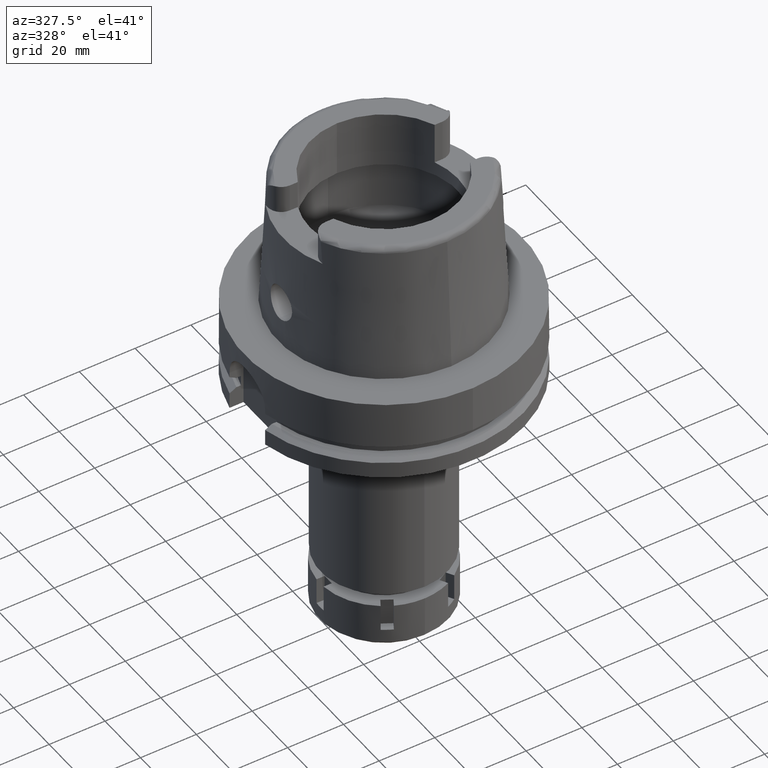
[diagram: clean part render]
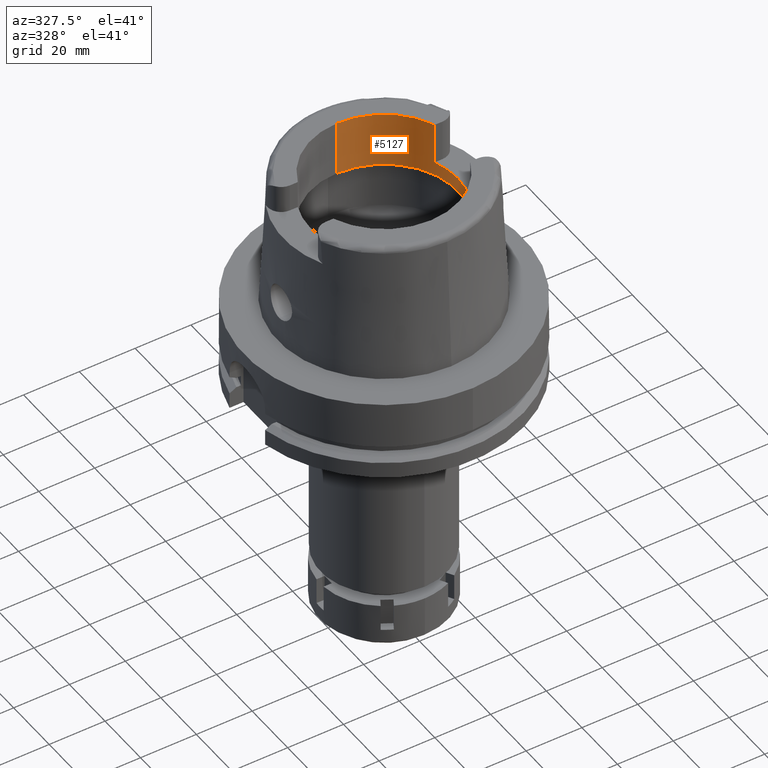
[diagram: same view with one face highlighted and labeled with its STEP entity id]
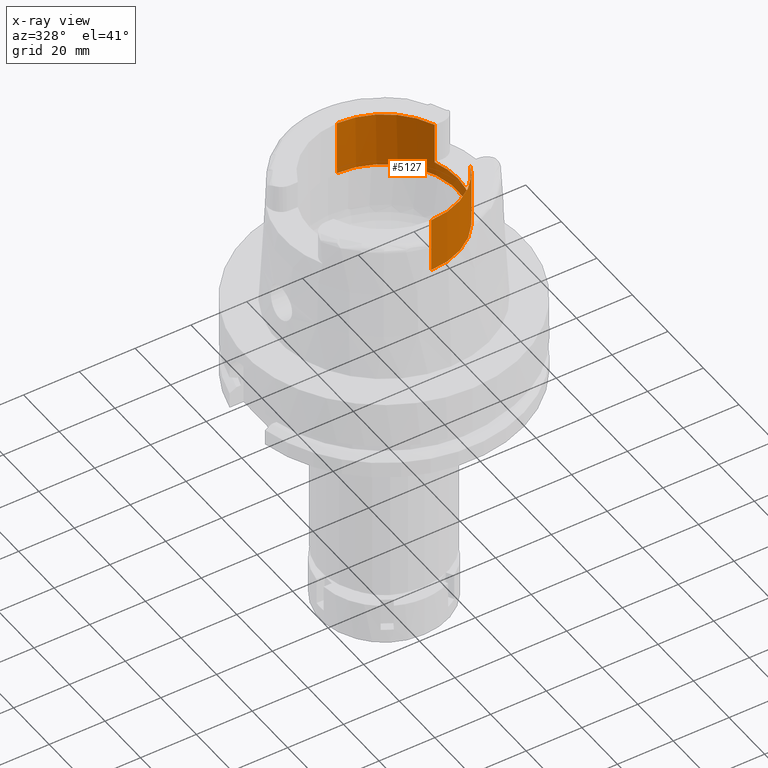
[diagram: x-ray of the same camera — body ghosted, the highlighted face saturated]
A machine part, auxiliary view. The second image highlights one B-rep face of the part: STEP entity #5127.
The next image is the same camera in x-ray: the body ghosted, the highlighted face saturated — about 0% of this face is hidden behind the body in this view.
In plain terms, the highlighted cylindrical surface (partial cylindrical patch) has radius 26.5 mm, axis along (0, 0, 1).
Its self-contained STEP definition (entity closure, byte-faithful):
#27 = EDGE_CURVE ( 'NONE', #1156, #3509, #1323, .T. ) ;
#113 = CARTESIAN_POINT ( 'NONE',  ( 0.0000000000000000000, -26.50000000000000000, 30.00337567297000163 ) ) ;
#222 = EDGE_CURVE ( 'NONE', #1194, #2707, #2703, .T. ) ;
#258 = CARTESIAN_POINT ( 'NONE',  ( 24.53670515777999839, 10.00999999999999979, 50.00000000000000000 ) ) ;
#261 = EDGE_CURVE ( 'NONE', #5029, #1194, #3629, .T. ) ;
#269 = VERTEX_POINT ( 'NONE', #1959 ) ;
#582 = FACE_OUTER_BOUND ( 'NONE', #5753, .T. ) ;
#724 = VERTEX_POINT ( 'NONE', #2742 ) ;
#886 = DIRECTION ( 'NONE',  ( 0.0000000000000000000, 0.0000000000000000000, 1.000000000000000000 ) ) ;
#914 = DIRECTION ( 'NONE',  ( 0.0000000000000000000, 0.0000000000000000000, 1.000000000000000000 ) ) ;
#1001 = AXIS2_PLACEMENT_3D ( 'NONE', #1419, #914, #3864 ) ;
#1008 = DIRECTION ( 'NONE',  ( 0.0000000000000000000, 0.0000000000000000000, 1.000000000000000000 ) ) ;
#1069 = CARTESIAN_POINT ( 'NONE',  ( 0.0000000000000000000, 0.0000000000000000000, 35.00000000000000000 ) ) ;
#1072 = ORIENTED_EDGE ( 'NONE', *, *, #5936, .T. ) ;
#1156 = VERTEX_POINT ( 'NONE', #1879 ) ;
#1194 = VERTEX_POINT ( 'NONE', #113 ) ;
#1231 = VERTEX_POINT ( 'NONE', #3378 ) ;
#1323 = LINE ( 'NONE', #258, #4213 ) ;
#1419 = CARTESIAN_POINT ( 'NONE',  ( 0.0000000000000000000, 0.0000000000000000000, 50.00000000000000000 ) ) ;
#1460 = ORIENTED_EDGE ( 'NONE', *, *, #27, .F. ) ;
#1493 = CIRCLE ( 'NONE', #4421, 26.50000000000000000 ) ;
#1527 = CYLINDRICAL_SURFACE ( 'NONE', #3517, 26.50000000000000000 ) ;
#1552 = EDGE_CURVE ( 'NONE', #2707, #1231, #1493, .T. ) ;
#1879 = CARTESIAN_POINT ( 'NONE',  ( 24.53670515777999839, 10.00999999999999979, 50.00000000000000000 ) ) ;
#1959 = CARTESIAN_POINT ( 'NONE',  ( 0.0000000000000000000, 26.50000000000000000, 50.00000000000000000 ) ) ;
#1971 = EDGE_CURVE ( 'NONE', #724, #1231, #4311, .T. ) ;
#2004 = EDGE_CURVE ( 'NONE', #1156, #269, #3176, .T. ) ;
#2239 = DIRECTION ( 'NONE',  ( 0.0000000000000000000, -1.000000000000000000, 0.0000000000000000000 ) ) ;
#2283 = LINE ( 'NONE', #3677, #4138 ) ;
#2398 = DIRECTION ( 'NONE',  ( 0.0000000000000000000, 4.406108640804999471E-14, 1.000000000000000000 ) ) ;
#2551 = AXIS2_PLACEMENT_3D ( 'NONE', #1069, #3491, #4833 ) ;
#2613 = CARTESIAN_POINT ( 'NONE',  ( 0.0000000000000000000, -26.50000000000000000, 30.00337567297000163 ) ) ;
#2703 = LINE ( 'NONE', #2613, #2848 ) ;
#2707 = VERTEX_POINT ( 'NONE', #3715 ) ;
#2742 = CARTESIAN_POINT ( 'NONE',  ( 24.53670515777999839, -10.00999999999999979, 35.00000000000000000 ) ) ;
#2797 = CARTESIAN_POINT ( 'NONE',  ( 24.53670515777999839, 10.00999999999999979, 35.00000000000000000 ) ) ;
#2848 = VECTOR ( 'NONE', #2398, 1000.000000000000000 ) ;
#2877 = ORIENTED_EDGE ( 'NONE', *, *, #3493, .F. ) ;
#3054 = AXIS2_PLACEMENT_3D ( 'NONE', #3305, #4275, #5156 ) ;
#3176 = CIRCLE ( 'NONE', #1001, 26.50000000000000711 ) ;
#3229 = CARTESIAN_POINT ( 'NONE',  ( 0.0000000000000000000, 0.0000000000000000000, 50.00000000000000000 ) ) ;
#3304 = ORIENTED_EDGE ( 'NONE', *, *, #1552, .T. ) ;
#3305 = CARTESIAN_POINT ( 'NONE',  ( 0.0000000000000000000, 0.0000000000000000000, 30.00337567297000163 ) ) ;
#3378 = CARTESIAN_POINT ( 'NONE',  ( 24.53670515777999839, -10.00999999999999979, 50.00000000000000000 ) ) ;
#3491 = DIRECTION ( 'NONE',  ( 0.0000000000000000000, 0.0000000000000000000, 1.000000000000000000 ) ) ;
#3493 = EDGE_CURVE ( 'NONE', #5029, #269, #2283, .T. ) ;
#3509 = VERTEX_POINT ( 'NONE', #2797 ) ;
#3517 = AXIS2_PLACEMENT_3D ( 'NONE', #3784, #5646, #5744 ) ;
#3629 = CIRCLE ( 'NONE', #3054, 26.50000000000000000 ) ;
#3677 = CARTESIAN_POINT ( 'NONE',  ( 0.0000000000000000000, 26.50000000000000000, 30.00337567297000163 ) ) ;
#3715 = CARTESIAN_POINT ( 'NONE',  ( 0.0000000000000000000, -26.50000000000000000, 50.00000000000000000 ) ) ;
#3767 = DIRECTION ( 'NONE',  ( 0.0000000000000000000, -4.406108640804999471E-14, 1.000000000000000000 ) ) ;
#3784 = CARTESIAN_POINT ( 'NONE',  ( 0.0000000000000000000, 0.0000000000000000000, -120.0999999999999943 ) ) ;
#3864 = DIRECTION ( 'NONE',  ( 0.9259134021805098813, 0.3777358490566039562, 0.0000000000000000000 ) ) ;
#4138 = VECTOR ( 'NONE', #3767, 1000.000000000000000 ) ;
#4189 = ORIENTED_EDGE ( 'NONE', *, *, #1971, .F. ) ;
#4213 = VECTOR ( 'NONE', #5535, 1000.000000000000000 ) ;
#4275 = DIRECTION ( 'NONE',  ( 0.0000000000000000000, 0.0000000000000000000, -1.000000000000000000 ) ) ;
#4311 = LINE ( 'NONE', #5723, #5011 ) ;
#4421 = AXIS2_PLACEMENT_3D ( 'NONE', #3229, #886, #2239 ) ;
#4429 = ORIENTED_EDGE ( 'NONE', *, *, #2004, .T. ) ;
#4833 = DIRECTION ( 'NONE',  ( 0.9259134021805098813, -0.3777358490566039562, 0.0000000000000000000 ) ) ;
#4915 = ORIENTED_EDGE ( 'NONE', *, *, #222, .T. ) ;
#5011 = VECTOR ( 'NONE', #1008, 1000.000000000000000 ) ;
#5029 = VERTEX_POINT ( 'NONE', #5500 ) ;
#5127 = ADVANCED_FACE ( 'NONE', ( #582 ), #1527, .F. ) ;
#5156 = DIRECTION ( 'NONE',  ( 0.0000000000000000000, 1.000000000000000000, 0.0000000000000000000 ) ) ;
#5175 = CIRCLE ( 'NONE', #2551, 26.50000000000000711 ) ;
#5326 = ORIENTED_EDGE ( 'NONE', *, *, #261, .T. ) ;
#5500 = CARTESIAN_POINT ( 'NONE',  ( 0.0000000000000000000, 26.50000000000000000, 30.00337567297000163 ) ) ;
#5535 = DIRECTION ( 'NONE',  ( 0.0000000000000000000, 0.0000000000000000000, -1.000000000000000000 ) ) ;
#5646 = DIRECTION ( 'NONE',  ( 0.0000000000000000000, 0.0000000000000000000, 1.000000000000000000 ) ) ;
#5723 = CARTESIAN_POINT ( 'NONE',  ( 24.53670515777999839, -10.00999999999999979, 35.00000000000000000 ) ) ;
#5744 = DIRECTION ( 'NONE',  ( 0.0000000000000000000, 1.000000000000000000, 0.0000000000000000000 ) ) ;
#5753 = EDGE_LOOP ( 'NONE', ( #1460, #4429, #2877, #5326, #4915, #3304, #4189, #1072 ) ) ;
#5936 = EDGE_CURVE ( 'NONE', #724, #3509, #5175, .T. ) ;